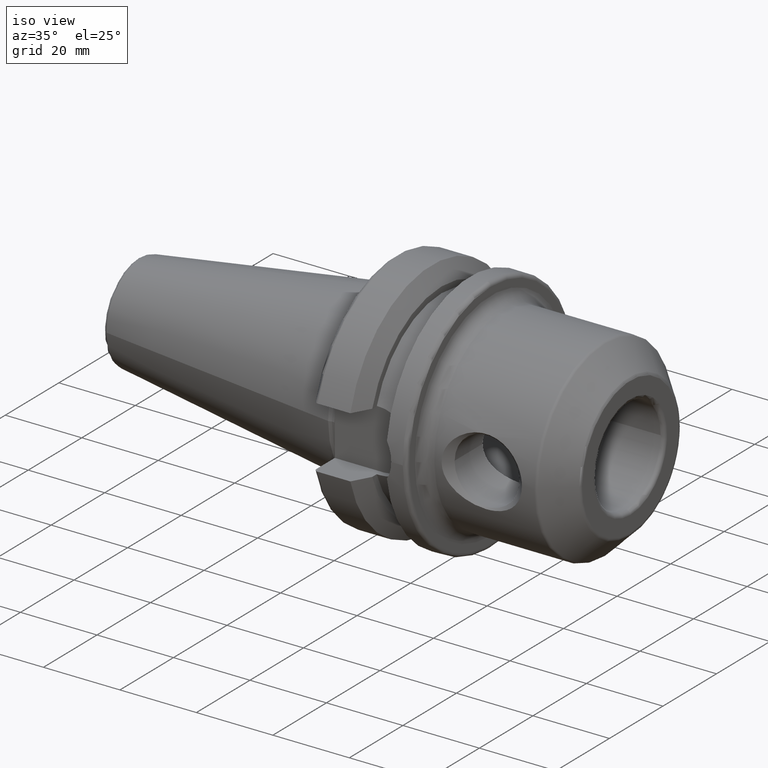
[diagram: clean part render]
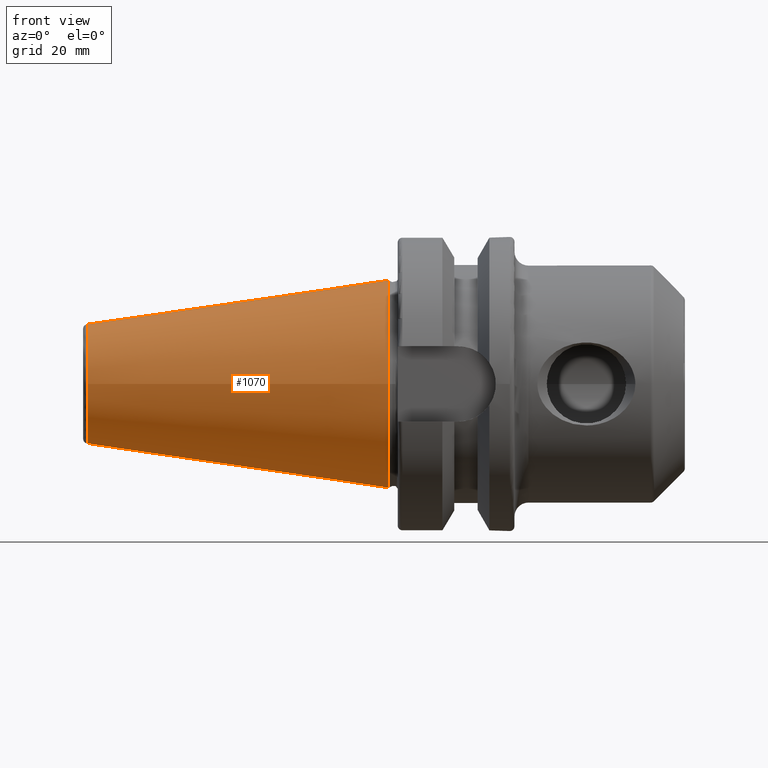
[diagram: tour spotlight — one face highlighted and labeled with its STEP entity id]
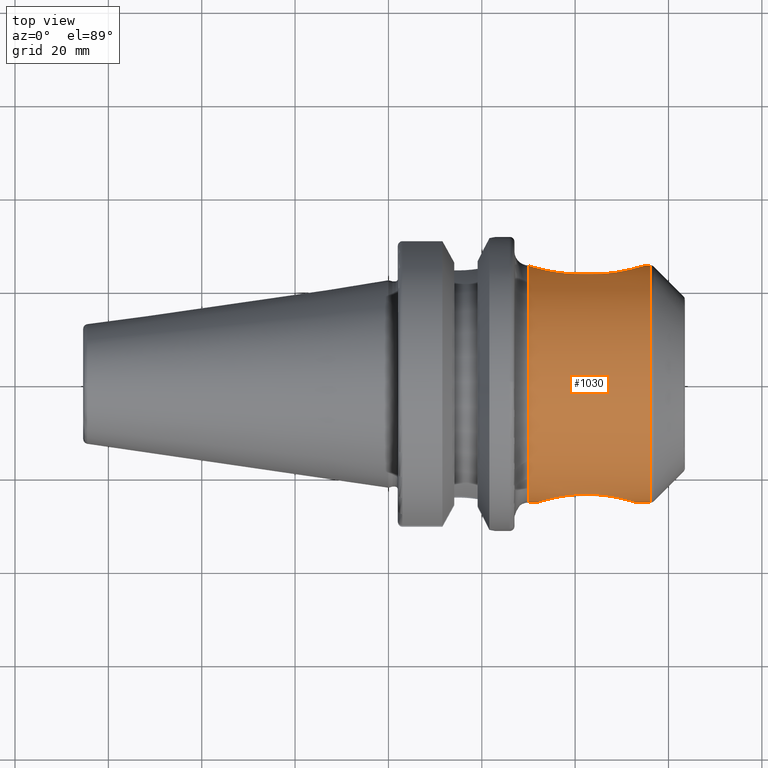
[diagram: tour spotlight — one face highlighted and labeled with its STEP entity id]
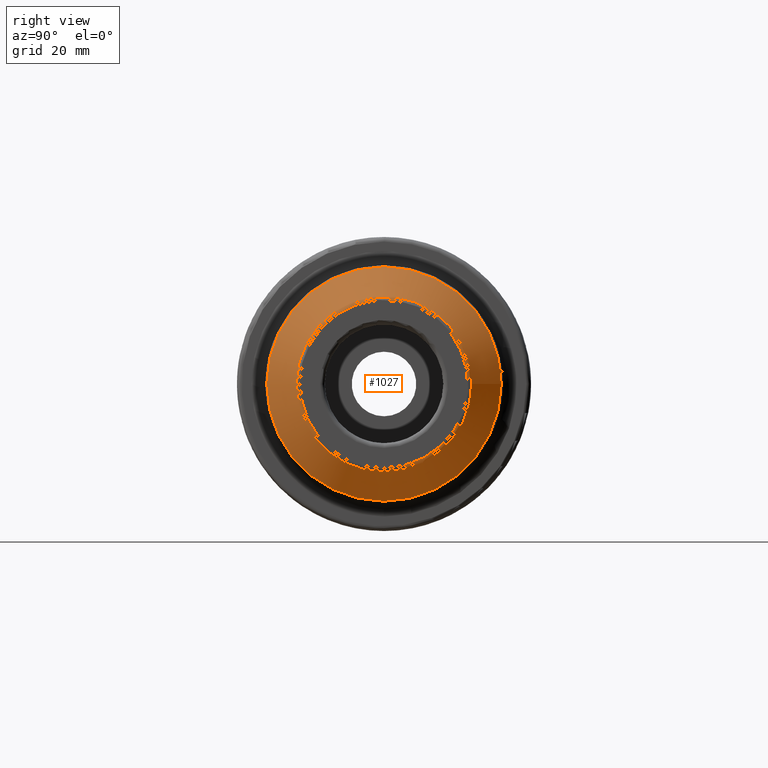
[diagram: tour spotlight — one face highlighted and labeled with its STEP entity id]
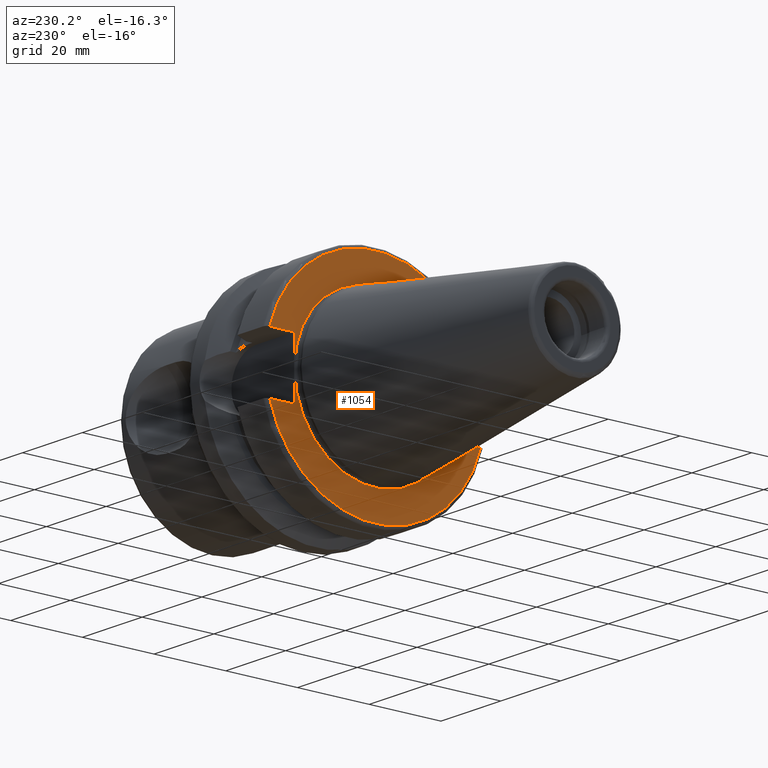
[diagram: tour spotlight — one face highlighted and labeled with its STEP entity id]
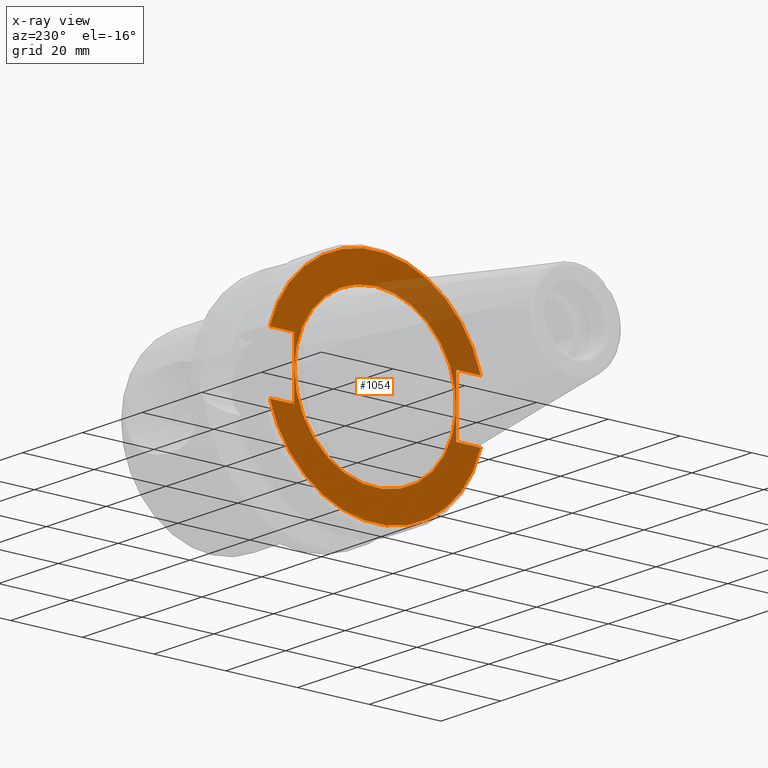
[diagram: x-ray of the same camera — body ghosted, this tour face saturated]
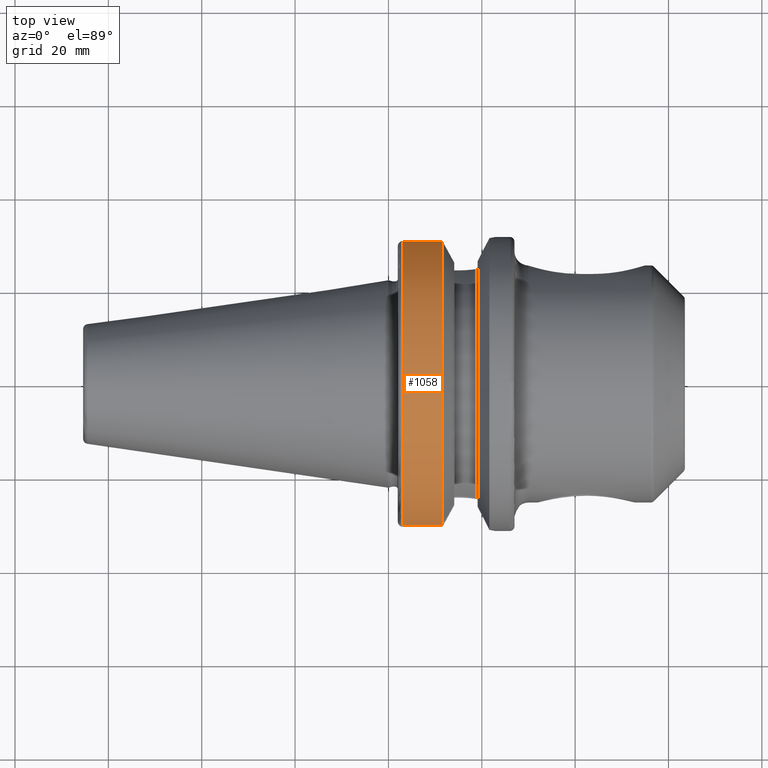
[diagram: tour spotlight — one face highlighted and labeled with its STEP entity id]
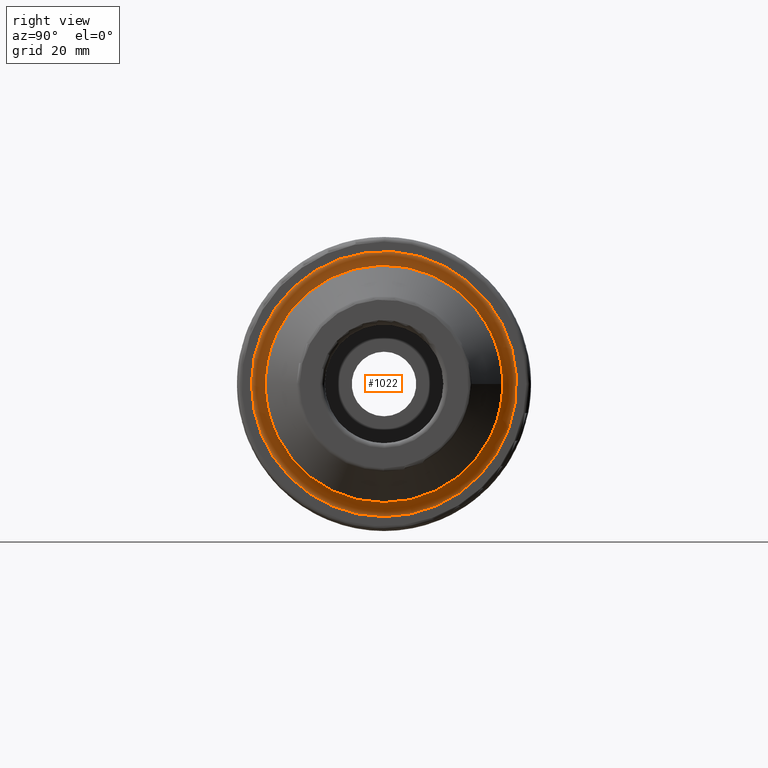
[diagram: tour spotlight — one face highlighted and labeled with its STEP entity id]
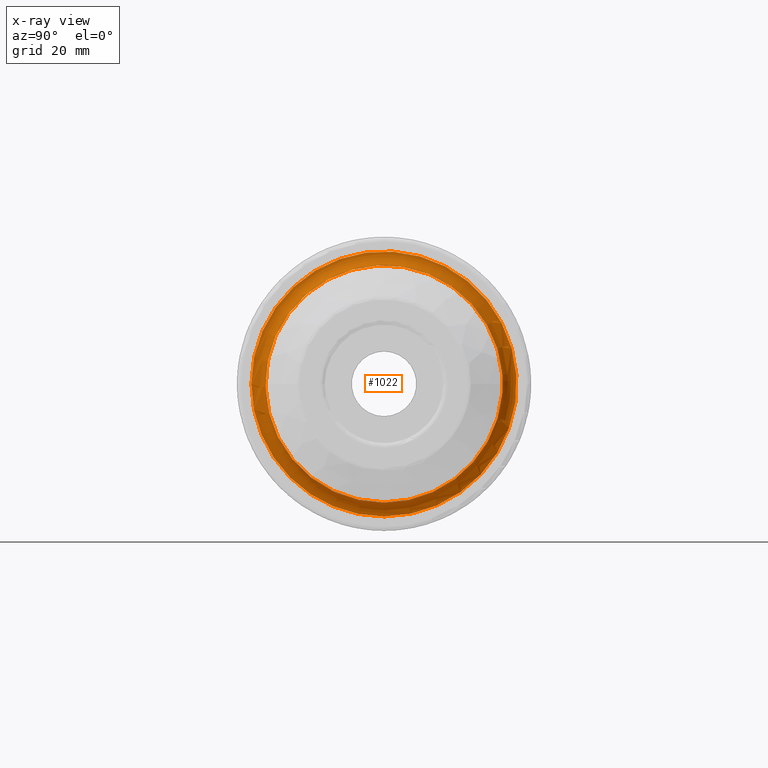
[diagram: x-ray of the same camera — body ghosted, this tour face saturated]
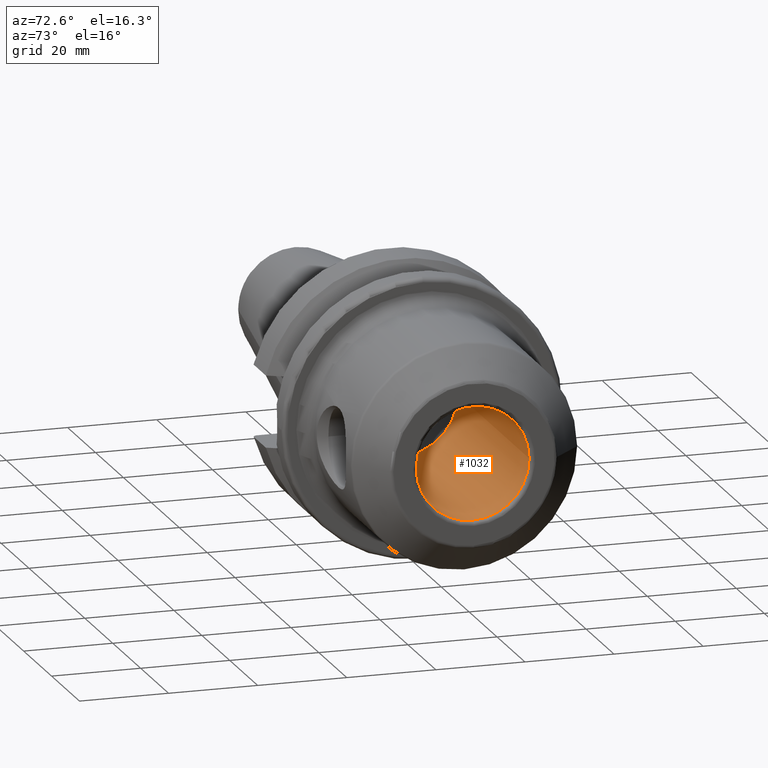
[diagram: tour spotlight — one face highlighted and labeled with its STEP entity id]
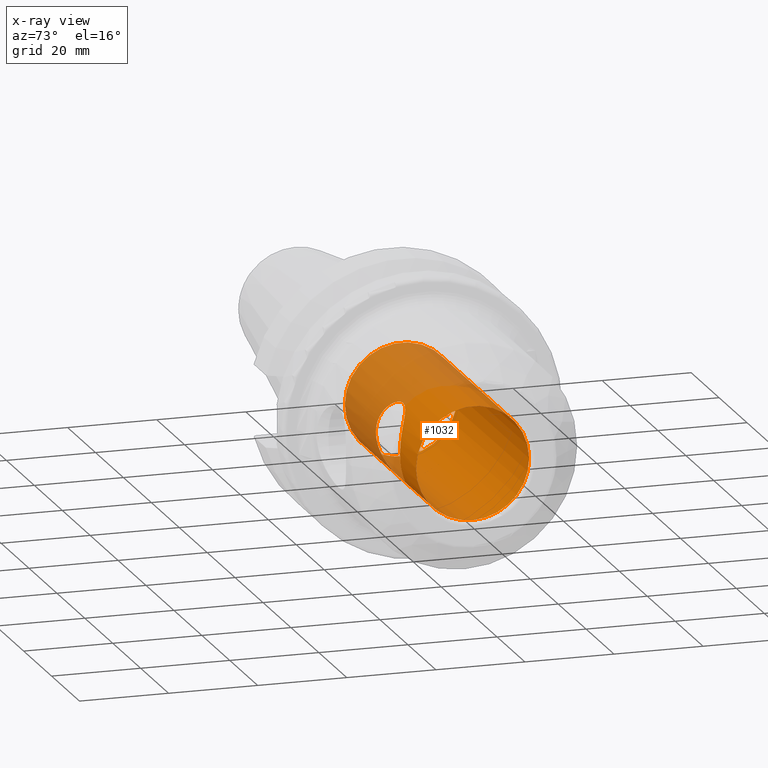
[diagram: x-ray of the same camera — body ghosted, this tour face saturated]
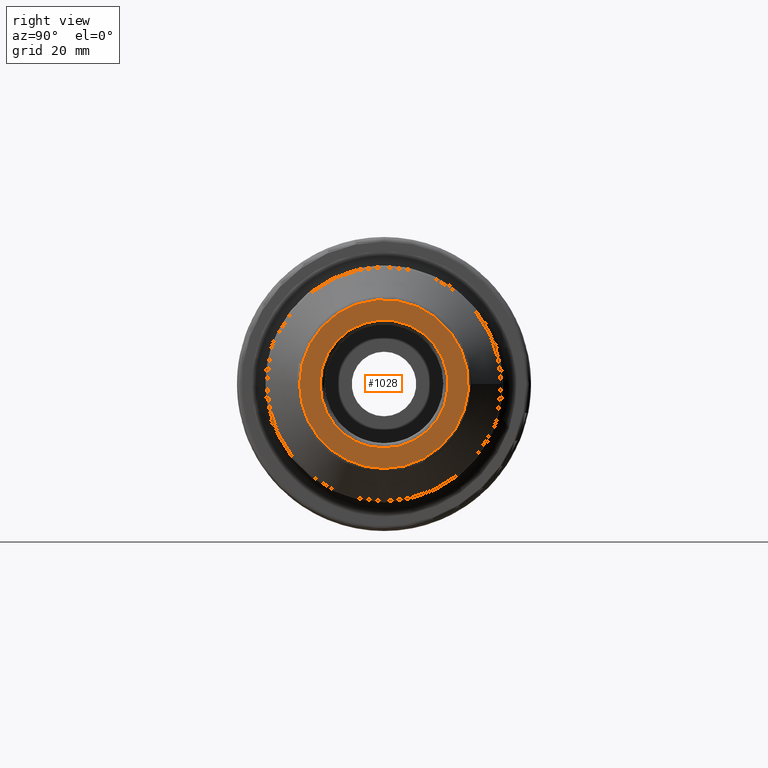
[diagram: tour spotlight — one face highlighted and labeled with its STEP entity id]
A machine part: a face-by-face anatomy tour. The part has 55 B-rep faces; the first image is the clean iso view, then the 8 largest visible faces are spotlighted one at a time (largest first), each with its STEP entity span.

Face 1 — front view, entity #1070. In plain terms, the highlighted conical surface has half-angle 8.297 deg.
Definition (entity closure, byte-faithful):
#26=CONICAL_SURFACE('',#1227,17.5186442890469,0.144812498238939);
#109=LINE('',#2118,#155);
#155=VECTOR('',#1556,17.5186442890469);
#225=FACE_OUTER_BOUND('',#290,.T.);
#290=EDGE_LOOP('',(#990,#991,#992,#993,#994,#995,#996));
#372=CIRCLE('',#1223,12.8122885780937);
#373=CIRCLE('',#1224,12.8122885780937);
#374=CIRCLE('',#1225,12.8122885780937);
#376=CIRCLE('',#1228,22.225);
#377=CIRCLE('',#1229,22.225);
#515=VERTEX_POINT('',#2106);
#516=VERTEX_POINT('',#2107);
#517=VERTEX_POINT('',#2109);
#518=VERTEX_POINT('',#2114);
#519=VERTEX_POINT('',#2115);
#674=EDGE_CURVE('',#515,#516,#372,.T.);
#675=EDGE_CURVE('',#517,#515,#373,.T.);
#676=EDGE_CURVE('',#516,#517,#374,.T.);
#678=EDGE_CURVE('',#518,#519,#376,.T.);
#679=EDGE_CURVE('',#519,#518,#377,.T.);
#680=EDGE_CURVE('',#519,#517,#109,.T.);
#990=ORIENTED_EDGE('',*,*,#678,.F.);
#991=ORIENTED_EDGE('',*,*,#679,.F.);
#992=ORIENTED_EDGE('',*,*,#680,.T.);
#993=ORIENTED_EDGE('',*,*,#675,.T.);
#994=ORIENTED_EDGE('',*,*,#674,.T.);
#995=ORIENTED_EDGE('',*,*,#676,.T.);
#996=ORIENTED_EDGE('',*,*,#680,.F.);
#1070=ADVANCED_FACE('',(#225),#26,.T.);
#1223=AXIS2_PLACEMENT_3D('',#2108,#1542,#1543);
#1224=AXIS2_PLACEMENT_3D('',#2110,#1544,#1545);
#1225=AXIS2_PLACEMENT_3D('',#2111,#1546,#1547);
#1227=AXIS2_PLACEMENT_3D('',#2113,#1550,#1551);
#1228=AXIS2_PLACEMENT_3D('',#2116,#1552,#1553);
#1229=AXIS2_PLACEMENT_3D('',#2117,#1554,#1555);
#1542=DIRECTION('center_axis',(1.,0.,0.));
#1543=DIRECTION('ref_axis',(0.,0.,-1.));
#1544=DIRECTION('center_axis',(1.,0.,0.));
#1545=DIRECTION('ref_axis',(0.,0.,-1.));
#1546=DIRECTION('center_axis',(1.,0.,0.));
#1547=DIRECTION('ref_axis',(0.,0.,-1.));
#1550=DIRECTION('center_axis',(1.,0.,0.));
#1551=DIRECTION('ref_axis',(0.,1.,0.));
#1552=DIRECTION('center_axis',(1.,0.,0.));
#1553=DIRECTION('ref_axis',(0.,0.,-1.));
#1554=DIRECTION('center_axis',(1.,0.,0.));
#1555=DIRECTION('ref_axis',(0.,0.,-1.));
#1556=DIRECTION('',(-0.989532981063282,0.144306893071729,1.76724974695192E-17));
#2106=CARTESIAN_POINT('',(-64.5443068930717,12.8122885780937,0.));
#2107=CARTESIAN_POINT('',(-64.5443068930717,-1.56905281969147E-15,12.8122885780937));
#2108=CARTESIAN_POINT('Origin',(-64.5443068930717,0.,0.));
#2109=CARTESIAN_POINT('',(-64.5443068930717,-12.8122885780937,-1.56905281969147E-15));
#2110=CARTESIAN_POINT('Origin',(-64.5443068930717,0.,0.));
#2111=CARTESIAN_POINT('Origin',(-64.5443068930717,0.,0.));
#2113=CARTESIAN_POINT('Origin',(-32.2721534465359,0.,0.));
#2114=CARTESIAN_POINT('',(1.11022302462516E-15,22.225,0.));
#2115=CARTESIAN_POINT('',(4.44089209850063E-15,-22.225,-2.72177751110499E-15));
#2116=CARTESIAN_POINT('Origin',(1.11022302462516E-15,0.,0.));
#2117=CARTESIAN_POINT('Origin',(1.11022302462516E-15,0.,0.));
#2118=CARTESIAN_POINT('',(-32.2721534465359,-17.5186442890469,-2.14541516539823E-15));

Face 2 — top view, entity #1030. In plain terms, the highlighted cylindrical surface (bore or boss wall) has radius 25.4 mm, axis along (-1, 0, 0).
Definition (entity closure, byte-faithful):
#30=FACE_BOUND('',#243,.T.);
#66=LINE('',#1645,#112);
#67=LINE('',#1646,#113);
#71=LINE('',#1779,#117);
#112=VECTOR('',#1251,10.);
#113=VECTOR('',#1252,10.);
#117=VECTOR('',#1322,25.4);
#160=CYLINDRICAL_SURFACE('',#1131,25.4);
#185=FACE_OUTER_BOUND('',#242,.T.);
#242=EDGE_LOOP('',(#750,#751,#752,#753,#754,#755,#756,#757,#758,#759,#760,
#761,#762));
#243=EDGE_LOOP('',(#763,#764));
#296=CIRCLE('',#1100,25.4);
#300=CIRCLE('',#1104,25.4);
#316=CIRCLE('',#1127,25.4);
#318=CIRCLE('',#1129,25.4);
#319=CIRCLE('',#1130,25.4);
#384=B_SPLINE_CURVE_WITH_KNOTS('',3,(#1581,#1582,#1583,#1584,#1585,#1586,
#1587,#1588,#1589,#1590),.UNSPECIFIED.,.F.,.F.,(4,2,2,2,4),(1.15060310915859,
1.5568528014465,1.96310249373441,2.35815051563219,2.55455688360268),
 .UNSPECIFIED.);
#385=B_SPLINE_CURVE_WITH_KNOTS('',3,(#1594,#1595,#1596,#1597,#1598,#1599,
#1600,#1601,#1602,#1603),.UNSPECIFIED.,.F.,.F.,(4,2,2,2,4),(2.95184019145727,
3.14824655942776,3.54329458132555,3.94954427361346,4.35579396590136),
 .UNSPECIFIED.);
#387=B_SPLINE_CURVE_WITH_KNOTS('',3,(#1614,#1615,#1616,#1617,#1618,#1619,
#1620,#1621,#1622,#1623,#1624,#1625,#1626,#1627),.UNSPECIFIED.,.F.,.F.,
(4,2,2,2,2,2,4),(1.17832725890177,1.45944341152974,1.74055956415772,2.02167571678569,
2.30279186941367,2.54829350110822,2.79379513280278),.UNSPECIFIED.);
#388=B_SPLINE_CURVE_WITH_KNOTS('',3,(#1630,#1631,#1632,#1633,#1634,#1635,
#1636,#1637,#1638,#1639,#1640,#1641,#1642,#1643),.UNSPECIFIED.,.F.,.F.,
(4,2,2,2,2,2,4),(2.79379513280278,3.03929676449733,3.28479839619188,3.56591454881986,
3.84703070144784,4.12814685407581,4.40926300670379),.UNSPECIFIED.);
#391=B_SPLINE_CURVE_WITH_KNOTS('',3,(#1709,#1710,#1711,#1712,#1713,#1714,
#1715,#1716,#1717,#1718,#1719,#1720,#1721,#1722,#1723,#1724,#1725,#1726,
#1727,#1728,#1729,#1730,#1731,#1732,#1733,#1734),.UNSPECIFIED.,.F.,.F.,
(4,2,2,2,2,2,2,2,2,2,2,2,4),(0.,0.3610240901817,0.7220481803634,1.09870730632305,
1.4753664322827,1.85202555824235,2.228684684202,2.5897087743837,2.9507328645654,
3.3117569547471,3.67278104492881,4.04944017088846,4.42609929684811),
 .UNSPECIFIED.);
#392=B_SPLINE_CURVE_WITH_KNOTS('',3,(#1735,#1736,#1737,#1738,#1739,#1740,
#1741,#1742,#1743,#1744),.UNSPECIFIED.,.F.,.F.,(4,2,2,2,4),(4.42609929684811,
4.80275842280776,5.17941754876741,5.54044163894911,5.90146572913081),
 .UNSPECIFIED.);
#408=VERTEX_POINT('',#1579);
#409=VERTEX_POINT('',#1580);
#410=VERTEX_POINT('',#1591);
#411=VERTEX_POINT('',#1593);
#412=VERTEX_POINT('',#1612);
#413=VERTEX_POINT('',#1613);
#414=VERTEX_POINT('',#1628);
#415=VERTEX_POINT('',#1648);
#424=VERTEX_POINT('',#1706);
#425=VERTEX_POINT('',#1708);
#436=VERTEX_POINT('',#1771);
#437=VERTEX_POINT('',#1772);
#438=VERTEX_POINT('',#1775);
#525=EDGE_CURVE('',#408,#409,#384,.T.);
#527=EDGE_CURVE('',#411,#410,#385,.T.);
#529=EDGE_CURVE('',#412,#413,#387,.T.);
#531=EDGE_CURVE('',#413,#414,#388,.T.);
#532=EDGE_CURVE('',#414,#408,#66,.T.);
#533=EDGE_CURVE('',#410,#412,#67,.T.);
#534=EDGE_CURVE('',#411,#415,#296,.T.);
#538=EDGE_CURVE('',#415,#409,#300,.T.);
#547=EDGE_CURVE('',#425,#424,#391,.T.);
#548=EDGE_CURVE('',#424,#425,#392,.T.);
#561=EDGE_CURVE('',#436,#437,#316,.T.);
#563=EDGE_CURVE('',#437,#438,#318,.T.);
#564=EDGE_CURVE('',#438,#436,#319,.T.);
#565=EDGE_CURVE('',#413,#438,#71,.T.);
#750=ORIENTED_EDGE('',*,*,#525,.T.);
#751=ORIENTED_EDGE('',*,*,#538,.F.);
#752=ORIENTED_EDGE('',*,*,#534,.F.);
#753=ORIENTED_EDGE('',*,*,#527,.T.);
#754=ORIENTED_EDGE('',*,*,#533,.T.);
#755=ORIENTED_EDGE('',*,*,#529,.T.);
#756=ORIENTED_EDGE('',*,*,#565,.T.);
#757=ORIENTED_EDGE('',*,*,#563,.F.);
#758=ORIENTED_EDGE('',*,*,#561,.F.);
#759=ORIENTED_EDGE('',*,*,#564,.F.);
#760=ORIENTED_EDGE('',*,*,#565,.F.);
#761=ORIENTED_EDGE('',*,*,#531,.T.);
#762=ORIENTED_EDGE('',*,*,#532,.T.);
#763=ORIENTED_EDGE('',*,*,#547,.T.);
#764=ORIENTED_EDGE('',*,*,#548,.T.);
#1030=ADVANCED_FACE('',(#185,#30),#160,.T.);
#1100=AXIS2_PLACEMENT_3D('',#1649,#1255,#1256);
#1104=AXIS2_PLACEMENT_3D('',#1655,#1263,#1264);
#1127=AXIS2_PLACEMENT_3D('',#1773,#1312,#1313);
#1129=AXIS2_PLACEMENT_3D('',#1776,#1316,#1317);
#1130=AXIS2_PLACEMENT_3D('',#1777,#1318,#1319);
#1131=AXIS2_PLACEMENT_3D('',#1778,#1320,#1321);
#1251=DIRECTION('',(-1.,0.,0.));
#1252=DIRECTION('',(1.,0.,0.));
#1255=DIRECTION('center_axis',(-1.,0.,0.));
#1256=DIRECTION('ref_axis',(0.,1.,1.22464679914735E-16));
#1263=DIRECTION('center_axis',(-1.,0.,0.));
#1264=DIRECTION('ref_axis',(0.,1.,1.22464679914735E-16));
#1312=DIRECTION('center_axis',(1.,0.,0.));
#1313=DIRECTION('ref_axis',(0.,1.,6.12323399573677E-17));
#1316=DIRECTION('center_axis',(1.,0.,0.));
#1317=DIRECTION('ref_axis',(0.,1.,6.12323399573677E-17));
#1318=DIRECTION('center_axis',(1.,0.,0.));
#1319=DIRECTION('ref_axis',(0.,1.,6.12323399573677E-17));
#1320=DIRECTION('center_axis',(-1.,0.,0.));
#1321=DIRECTION('ref_axis',(0.,-1.,0.));
#1322=DIRECTION('',(1.,0.,0.));
#1579=CARTESIAN_POINT('',(40.9,23.4102893890675,9.85486431769167));
#1580=CARTESIAN_POINT('',(30.,25.3204180064309,2.00908734992076));
#1581=CARTESIAN_POINT('Ctrl Pts',(40.9,23.4102893890675,9.85486431769167));
#1582=CARTESIAN_POINT('Ctrl Pts',(39.5458343590403,23.4102893890675,9.85486431769167));
#1583=CARTESIAN_POINT('Ctrl Pts',(38.0919462507472,23.5075695234657,9.63361514678932));
#1584=CARTESIAN_POINT('Ctrl Pts',(35.383195251928,23.8701094877704,8.69656574453217));
#1585=CARTESIAN_POINT('Ctrl Pts',(34.1283920846057,24.1311088420766,7.97895023498345));
#1586=CARTESIAN_POINT('Ctrl Pts',(32.1366281051506,24.6294604700915,6.27052341409688));
#1587=CARTESIAN_POINT('Ctrl Pts',(31.2586171467016,24.8991613034987,5.17326247028897));
#1588=CARTESIAN_POINT('Ctrl Pts',(30.3749609893207,25.1898774356332,3.31940018628545));
#1589=CARTESIAN_POINT('Ctrl Pts',(30.1495297437512,25.2680104756628,2.66957659434583));
#1590=CARTESIAN_POINT('Ctrl Pts',(30.,25.3204180064309,2.00908734992075));
#1591=CARTESIAN_POINT('',(40.9,23.4102893890675,-9.85486431769167));
#1593=CARTESIAN_POINT('',(30.,25.3204180064309,-2.00908734992076));
#1594=CARTESIAN_POINT('Ctrl Pts',(30.,25.3204180064309,-2.00908734992076));
#1595=CARTESIAN_POINT('Ctrl Pts',(30.1495297437512,25.2680104756628,-2.66957659434583));
#1596=CARTESIAN_POINT('Ctrl Pts',(30.3749609893207,25.1898774356332,-3.31940018628545));
#1597=CARTESIAN_POINT('Ctrl Pts',(31.2586171467016,24.8991613034987,-5.17326247028897));
#1598=CARTESIAN_POINT('Ctrl Pts',(32.1366281051506,24.6294604700915,-6.27052341409688));
#1599=CARTESIAN_POINT('Ctrl Pts',(34.1283920846057,24.1311088420766,-7.97895023498345));
#1600=CARTESIAN_POINT('Ctrl Pts',(35.383195251928,23.8701094877704,-8.69656574453217));
#1601=CARTESIAN_POINT('Ctrl Pts',(38.0919462507472,23.5075695234657,-9.63361514678932));
#1602=CARTESIAN_POINT('Ctrl Pts',(39.5458343590403,23.4102893890675,-9.85486431769167));
#1603=CARTESIAN_POINT('Ctrl Pts',(40.9,23.4102893890675,-9.85486431769167));
#1612=CARTESIAN_POINT('',(43.9,23.4102893890675,-9.85486431769167));
#1613=CARTESIAN_POINT('',(55.0247471881387,25.4,-3.35941384993302E-15));
#1614=CARTESIAN_POINT('Ctrl Pts',(43.9,23.4102893890675,-9.85486431769167));
#1615=CARTESIAN_POINT('Ctrl Pts',(44.8370538420933,23.4102893890675,-9.85486431769167));
#1616=CARTESIAN_POINT('Ctrl Pts',(45.7977423518484,23.4539959498598,-9.75305848004407));
#1617=CARTESIAN_POINT('Ctrl Pts',(47.6769739944852,23.625444609717,-9.33008268165364));
#1618=CARTESIAN_POINT('Ctrl Pts',(48.5955579425953,23.7529559221369,-9.00900054831946));
#1619=CARTESIAN_POINT('Ctrl Pts',(50.3094927429142,24.0589584727008,-8.15668737560362));
#1620=CARTESIAN_POINT('Ctrl Pts',(51.1065653637113,24.2372990048406,-7.62459709597406));
#1621=CARTESIAN_POINT('Ctrl Pts',(52.5131016610926,24.5950310978576,-6.37695770130135));
#1622=CARTESIAN_POINT('Ctrl Pts',(53.1226602870351,24.7738996893597,-5.66136573563702));
#1623=CARTESIAN_POINT('Ctrl Pts',(54.0421142874685,25.0610732027248,-4.19387163172099));
#1624=CARTESIAN_POINT('Ctrl Pts',(54.4153385046958,25.1870089336745,-3.39025944228934));
#1625=CARTESIAN_POINT('Ctrl Pts',(54.9067925280826,25.3570595887689,-1.70259213601163));
#1626=CARTESIAN_POINT('Ctrl Pts',(55.0247471881387,25.4,-0.818338772315187));
#1627=CARTESIAN_POINT('Ctrl Pts',(55.0247471881387,25.4,-3.60822483003176E-15));
#1628=CARTESIAN_POINT('',(43.9,23.4102893890675,9.85486431769167));
#1630=CARTESIAN_POINT('Ctrl Pts',(55.0247471881387,25.4,-3.33066907387547E-15));
#1631=CARTESIAN_POINT('Ctrl Pts',(55.0247471881387,25.4,0.81833877231518));
#1632=CARTESIAN_POINT('Ctrl Pts',(54.9067925280826,25.3570595887689,1.70259213601162));
#1633=CARTESIAN_POINT('Ctrl Pts',(54.4153385046958,25.1870089336745,3.39025944228934));
#1634=CARTESIAN_POINT('Ctrl Pts',(54.0421142874685,25.0610732027248,4.19387163172098));
#1635=CARTESIAN_POINT('Ctrl Pts',(53.1226602870351,24.7738996893597,5.66136573563701));
#1636=CARTESIAN_POINT('Ctrl Pts',(52.5131016610926,24.5950310978577,6.37695770130135));
#1637=CARTESIAN_POINT('Ctrl Pts',(51.1065653637113,24.2372990048406,7.62459709597406));
#1638=CARTESIAN_POINT('Ctrl Pts',(50.3094927429142,24.0589584727008,8.15668737560362));
#1639=CARTESIAN_POINT('Ctrl Pts',(48.5955579425953,23.7529559221369,9.00900054831946));
#1640=CARTESIAN_POINT('Ctrl Pts',(47.6769739944852,23.625444609717,9.33008268165364));
#1641=CARTESIAN_POINT('Ctrl Pts',(45.7977423518484,23.4539959498598,9.75305848004407));
#1642=CARTESIAN_POINT('Ctrl Pts',(44.8370538420932,23.4102893890675,9.85486431769167));
#1643=CARTESIAN_POINT('Ctrl Pts',(43.9,23.4102893890675,9.85486431769167));
#1645=CARTESIAN_POINT('',(42.4,23.4102893890675,9.85486431769167));
#1646=CARTESIAN_POINT('',(42.4,23.4102893890675,-9.85486431769167));
#1648=CARTESIAN_POINT('',(30.,-3.11060286983428E-15,-25.4));
#1649=CARTESIAN_POINT('Origin',(30.,0.,0.));
#1655=CARTESIAN_POINT('Origin',(30.,0.,0.));
#1706=CARTESIAN_POINT('',(52.9,-25.4,1.28587913910472E-15));
#1708=CARTESIAN_POINT('',(42.4,-23.7925059277946,-8.89250592779455));
#1709=CARTESIAN_POINT('Ctrl Pts',(42.4,-23.7925059277946,-8.89250592779455));
#1710=CARTESIAN_POINT('Ctrl Pts',(41.196586366061,-23.7925059277946,-8.89250592779455));
#1711=CARTESIAN_POINT('Ctrl Pts',(39.9008548135324,-23.8656911476182,-8.70427240656399));
#1712=CARTESIAN_POINT('Ctrl Pts',(37.4607998542122,-24.1398142954509,-7.91232914597284));
#1713=CARTESIAN_POINT('Ctrl Pts',(36.3160094816915,-24.3372176404209,-7.30883874161161));
#1714=CARTESIAN_POINT('Ctrl Pts',(34.3895290313291,-24.7334738837625,-5.83301357455255));
#1715=CARTESIAN_POINT('Ctrl Pts',(33.4826770482316,-24.9620248182559,-4.83672333921457));
#1716=CARTESIAN_POINT('Ctrl Pts',(32.2366862365842,-25.2981978723389,-2.54907486354706));
#1717=CARTESIAN_POINT('Ctrl Pts',(31.9,-25.4,-1.2555304198655));
#1718=CARTESIAN_POINT('Ctrl Pts',(31.9,-25.4,1.2555304198655));
#1719=CARTESIAN_POINT('Ctrl Pts',(32.2366862365842,-25.2981978723389,2.54907486354706));
#1720=CARTESIAN_POINT('Ctrl Pts',(33.4826770482316,-24.9620248182559,4.83672333921457));
#1721=CARTESIAN_POINT('Ctrl Pts',(34.3895290313291,-24.7334738837625,5.83301357455255));
#1722=CARTESIAN_POINT('Ctrl Pts',(36.3160094816915,-24.3372176404209,7.30883874161161));
#1723=CARTESIAN_POINT('Ctrl Pts',(37.4607998542122,-24.1398142954509,7.91232914597284));
#1724=CARTESIAN_POINT('Ctrl Pts',(39.9008548135324,-23.8656911476182,8.70427240656399));
#1725=CARTESIAN_POINT('Ctrl Pts',(41.196586366061,-23.7925059277946,8.89250592779455));
#1726=CARTESIAN_POINT('Ctrl Pts',(43.603413633939,-23.7925059277946,8.89250592779455));
#1727=CARTESIAN_POINT('Ctrl Pts',(44.8991451864676,-23.8656911476182,8.70427240656399));
#1728=CARTESIAN_POINT('Ctrl Pts',(47.3392001457878,-24.1398142954509,7.91232914597283));
#1729=CARTESIAN_POINT('Ctrl Pts',(48.4839905183085,-24.3372176404209,7.30883874161161));
#1730=CARTESIAN_POINT('Ctrl Pts',(50.4104709686709,-24.7334738837625,5.83301357455255));
#1731=CARTESIAN_POINT('Ctrl Pts',(51.3173229517684,-24.9620248182559,4.83672333921457));
#1732=CARTESIAN_POINT('Ctrl Pts',(52.5633137634158,-25.2981978723389,2.54907486354706));
#1733=CARTESIAN_POINT('Ctrl Pts',(52.9,-25.4,1.25553041986551));
#1734=CARTESIAN_POINT('Ctrl Pts',(52.9,-25.4,3.60822483003176E-15));
#1735=CARTESIAN_POINT('Ctrl Pts',(52.9,-25.4,-8.32667268468867E-16));
#1736=CARTESIAN_POINT('Ctrl Pts',(52.9,-25.4,-1.2555304198655));
#1737=CARTESIAN_POINT('Ctrl Pts',(52.5633137634158,-25.2981978723389,-2.54907486354706));
#1738=CARTESIAN_POINT('Ctrl Pts',(51.3173229517684,-24.9620248182559,-4.83672333921457));
#1739=CARTESIAN_POINT('Ctrl Pts',(50.4104709686709,-24.7334738837625,-5.83301357455255));
#1740=CARTESIAN_POINT('Ctrl Pts',(48.4839905183085,-24.3372176404209,-7.30883874161161));
#1741=CARTESIAN_POINT('Ctrl Pts',(47.3392001457878,-24.1398142954509,-7.91232914597284));
#1742=CARTESIAN_POINT('Ctrl Pts',(44.8991451864676,-23.8656911476182,-8.70427240656399));
#1743=CARTESIAN_POINT('Ctrl Pts',(43.603413633939,-23.7925059277946,-8.89250592779455));
#1744=CARTESIAN_POINT('Ctrl Pts',(42.4,-23.7925059277946,-8.89250592779455));
#1771=CARTESIAN_POINT('',(56.1857864376269,-25.4,-4.66590430475142E-15));
#1772=CARTESIAN_POINT('',(56.1857864376269,-3.11060286983428E-15,-25.4));
#1773=CARTESIAN_POINT('Origin',(56.1857864376269,0.,0.));
#1775=CARTESIAN_POINT('',(56.1857864376269,25.4,-3.11060286983428E-15));
#1776=CARTESIAN_POINT('Origin',(56.1857864376269,0.,0.));
#1777=CARTESIAN_POINT('Origin',(56.1857864376269,0.,0.));
#1778=CARTESIAN_POINT('Origin',(41.8,0.,0.));
#1779=CARTESIAN_POINT('',(41.8,25.4,-3.11060286983428E-15));

Face 3 — right view, entity #1027. In plain terms, the highlighted conical surface has half-angle 45 deg.
Definition (entity closure, byte-faithful):
#20=CONICAL_SURFACE('',#1119,21.95,0.785398163397449);
#70=LINE('',#1764,#116);
#116=VECTOR('',#1303,21.95);
#182=FACE_OUTER_BOUND('',#238,.T.);
#238=EDGE_LOOP('',(#730,#731,#732,#733,#734,#735,#736,#737));
#305=CIRCLE('',#1113,18.7928932188135);
#309=CIRCLE('',#1117,18.7928932188135);
#310=CIRCLE('',#1118,18.7928932188135);
#311=CIRCLE('',#1120,25.1071067811865);
#312=CIRCLE('',#1121,25.1071067811865);
#313=CIRCLE('',#1122,25.1071067811865);
#426=VERTEX_POINT('',#1746);
#427=VERTEX_POINT('',#1747);
#430=VERTEX_POINT('',#1754);
#431=VERTEX_POINT('',#1758);
#432=VERTEX_POINT('',#1759);
#433=VERTEX_POINT('',#1761);
#549=EDGE_CURVE('',#426,#427,#305,.T.);
#553=EDGE_CURVE('',#427,#430,#309,.T.);
#554=EDGE_CURVE('',#430,#426,#310,.T.);
#555=EDGE_CURVE('',#431,#432,#311,.T.);
#556=EDGE_CURVE('',#433,#431,#312,.T.);
#557=EDGE_CURVE('',#432,#433,#313,.T.);
#558=EDGE_CURVE('',#432,#430,#70,.T.);
#730=ORIENTED_EDGE('',*,*,#555,.F.);
#731=ORIENTED_EDGE('',*,*,#556,.F.);
#732=ORIENTED_EDGE('',*,*,#557,.F.);
#733=ORIENTED_EDGE('',*,*,#558,.T.);
#734=ORIENTED_EDGE('',*,*,#553,.F.);
#735=ORIENTED_EDGE('',*,*,#549,.F.);
#736=ORIENTED_EDGE('',*,*,#554,.F.);
#737=ORIENTED_EDGE('',*,*,#558,.F.);
#1027=ADVANCED_FACE('',(#182),#20,.T.);
#1113=AXIS2_PLACEMENT_3D('',#1748,#1283,#1284);
#1117=AXIS2_PLACEMENT_3D('',#1755,#1291,#1292);
#1118=AXIS2_PLACEMENT_3D('',#1756,#1293,#1294);
#1119=AXIS2_PLACEMENT_3D('',#1757,#1295,#1296);
#1120=AXIS2_PLACEMENT_3D('',#1760,#1297,#1298);
#1121=AXIS2_PLACEMENT_3D('',#1762,#1299,#1300);
#1122=AXIS2_PLACEMENT_3D('',#1763,#1301,#1302);
#1283=DIRECTION('center_axis',(1.,0.,0.));
#1284=DIRECTION('ref_axis',(0.,1.,-3.06161699786838E-17));
#1291=DIRECTION('center_axis',(1.,0.,0.));
#1292=DIRECTION('ref_axis',(0.,1.,-3.06161699786838E-17));
#1293=DIRECTION('center_axis',(1.,0.,0.));
#1294=DIRECTION('ref_axis',(0.,1.,-3.06161699786838E-17));
#1295=DIRECTION('center_axis',(-1.,0.,0.));
#1296=DIRECTION('ref_axis',(0.,-1.,0.));
#1297=DIRECTION('center_axis',(-1.,0.,0.));
#1298=DIRECTION('ref_axis',(0.,1.,-3.06161699786838E-17));
#1299=DIRECTION('center_axis',(-1.,0.,0.));
#1300=DIRECTION('ref_axis',(0.,1.,-3.06161699786838E-17));
#1301=DIRECTION('center_axis',(-1.,0.,0.));
#1302=DIRECTION('ref_axis',(0.,1.,-3.06161699786838E-17));
#1303=DIRECTION('',(0.707106781186547,-0.707106781186548,8.65956056235494E-17));
#1746=CARTESIAN_POINT('',(63.2071067811866,-18.7928932188135,-3.45219847907068E-15));
#1747=CARTESIAN_POINT('',(63.2071067811866,-2.30146565271379E-15,-18.7928932188135));
#1748=CARTESIAN_POINT('Origin',(63.2071067811866,0.,-1.72609923953534E-15));
#1754=CARTESIAN_POINT('',(63.2071067811866,18.7928932188135,-2.30146565271379E-15));
#1755=CARTESIAN_POINT('Origin',(63.2071067811866,0.,-1.72609923953534E-15));
#1756=CARTESIAN_POINT('Origin',(63.2071067811866,0.,-1.72609923953534E-15));
#1757=CARTESIAN_POINT('Origin',(60.05,0.,0.));
#1758=CARTESIAN_POINT('',(56.8928932188135,-25.1071067811865,1.53736689777154E-15));
#1759=CARTESIAN_POINT('',(56.8928932188135,25.1071067811866,-3.07473379554309E-15));
#1760=CARTESIAN_POINT('Origin',(56.8928932188135,0.,-2.30605034665732E-15));
#1761=CARTESIAN_POINT('',(56.8928932188135,-3.07473379554309E-15,-25.1071067811866));
#1762=CARTESIAN_POINT('Origin',(56.8928932188135,0.,-2.30605034665732E-15));
#1763=CARTESIAN_POINT('Origin',(56.8928932188135,0.,-2.30605034665732E-15));
#1764=CARTESIAN_POINT('',(60.05,21.95,-2.68809972412844E-15));

Face 4 — auxiliary view, entity #1054. An x-ray twin of the same camera follows (body ghosted, this face saturated) — the face is partly hidden behind the body. In plain terms, the highlighted planar face has unit normal (-1, 0, 0).
Definition (entity closure, byte-faithful):
#35=FACE_BOUND('',#272,.T.);
#51=PLANE('',#1183);
#78=LINE('',#1841,#124);
#86=LINE('',#1901,#132);
#89=LINE('',#1921,#135);
#98=LINE('',#2004,#144);
#103=LINE('',#2044,#149);
#105=LINE('',#2047,#151);
#124=VECTOR('',#1373,10.);
#132=VECTOR('',#1387,10.);
#135=VECTOR('',#1392,10.);
#144=VECTOR('',#1443,10.);
#149=VECTOR('',#1454,10.);
#151=VECTOR('',#1458,10.);
#209=FACE_OUTER_BOUND('',#271,.T.);
#271=EDGE_LOOP('',(#903,#904,#905,#906,#907,#908,#909,#910));
#272=EDGE_LOOP('',(#911,#912));
#346=CIRCLE('',#1177,30.5);
#348=CIRCLE('',#1184,30.5);
#349=CIRCLE('',#1185,22.5);
#350=CIRCLE('',#1186,22.5);
#457=VERTEX_POINT('',#1829);
#458=VERTEX_POINT('',#1840);
#470=VERTEX_POINT('',#1898);
#471=VERTEX_POINT('',#1900);
#487=VERTEX_POINT('',#1983);
#491=VERTEX_POINT('',#2001);
#492=VERTEX_POINT('',#2003);
#499=VERTEX_POINT('',#2043);
#500=VERTEX_POINT('',#2050);
#501=VERTEX_POINT('',#2051);
#588=EDGE_CURVE('',#458,#457,#78,.T.);
#603=EDGE_CURVE('',#471,#470,#86,.T.);
#608=EDGE_CURVE('',#470,#458,#89,.T.);
#629=EDGE_CURVE('',#471,#487,#346,.T.);
#634=EDGE_CURVE('',#492,#491,#98,.T.);
#644=EDGE_CURVE('',#499,#487,#103,.T.);
#646=EDGE_CURVE('',#491,#499,#105,.T.);
#647=EDGE_CURVE('',#492,#457,#348,.T.);
#648=EDGE_CURVE('',#500,#501,#349,.T.);
#649=EDGE_CURVE('',#501,#500,#350,.T.);
#903=ORIENTED_EDGE('',*,*,#588,.T.);
#904=ORIENTED_EDGE('',*,*,#647,.F.);
#905=ORIENTED_EDGE('',*,*,#634,.T.);
#906=ORIENTED_EDGE('',*,*,#646,.T.);
#907=ORIENTED_EDGE('',*,*,#644,.T.);
#908=ORIENTED_EDGE('',*,*,#629,.F.);
#909=ORIENTED_EDGE('',*,*,#603,.T.);
#910=ORIENTED_EDGE('',*,*,#608,.T.);
#911=ORIENTED_EDGE('',*,*,#648,.T.);
#912=ORIENTED_EDGE('',*,*,#649,.T.);
#1054=ADVANCED_FACE('',(#209,#35),#51,.T.);
#1177=AXIS2_PLACEMENT_3D('',#1984,#1436,#1437);
#1183=AXIS2_PLACEMENT_3D('',#2048,#1459,#1460);
#1184=AXIS2_PLACEMENT_3D('',#2049,#1461,#1462);
#1185=AXIS2_PLACEMENT_3D('',#2052,#1463,#1464);
#1186=AXIS2_PLACEMENT_3D('',#2053,#1465,#1466);
#1373=DIRECTION('',(0.,-1.,0.));
#1387=DIRECTION('',(0.,1.,0.));
#1392=DIRECTION('',(0.,0.,1.));
#1436=DIRECTION('center_axis',(1.,0.,0.));
#1437=DIRECTION('ref_axis',(0.,0.,-1.));
#1443=DIRECTION('',(0.,-1.,0.));
#1454=DIRECTION('',(0.,1.,0.));
#1458=DIRECTION('',(0.,0.,-1.));
#1459=DIRECTION('center_axis',(-1.,0.,0.));
#1460=DIRECTION('ref_axis',(0.,0.,1.));
#1461=DIRECTION('center_axis',(1.,0.,0.));
#1462=DIRECTION('ref_axis',(0.,0.,-1.));
#1463=DIRECTION('center_axis',(1.,0.,0.));
#1464=DIRECTION('ref_axis',(0.,0.,-1.));
#1465=DIRECTION('center_axis',(1.,0.,0.));
#1466=DIRECTION('ref_axis',(0.,0.,-1.));
#1829=CARTESIAN_POINT('',(1.99999999999999,-29.4184890842477,8.05));
#1840=CARTESIAN_POINT('',(1.99999999999999,-22.6,8.05));
#1841=CARTESIAN_POINT('',(1.99999999999999,3.95,8.05));
#1898=CARTESIAN_POINT('',(1.99999999999999,-22.6,-8.05));
#1900=CARTESIAN_POINT('',(1.99999999999999,-29.4184890842477,-8.05));
#1901=CARTESIAN_POINT('',(1.99999999999999,3.95,-8.05));
#1921=CARTESIAN_POINT('',(1.99999999999999,-22.6,0.));
#1983=CARTESIAN_POINT('',(1.99999999999999,29.4184890842477,-8.05));
#1984=CARTESIAN_POINT('Origin',(1.99999999999999,0.,0.));
#2001=CARTESIAN_POINT('',(1.99999999999999,22.6,8.05));
#2003=CARTESIAN_POINT('',(1.99999999999999,29.4184890842477,8.05));
#2004=CARTESIAN_POINT('',(1.99999999999999,26.55,8.05));
#2043=CARTESIAN_POINT('',(1.99999999999999,22.6,-8.05));
#2044=CARTESIAN_POINT('',(1.99999999999999,26.55,-8.05));
#2047=CARTESIAN_POINT('',(1.99999999999999,22.6,0.));
#2048=CARTESIAN_POINT('Origin',(1.99999999999999,30.5,0.));
#2049=CARTESIAN_POINT('Origin',(1.99999999999999,0.,0.));
#2050=CARTESIAN_POINT('',(2.,22.5,0.));
#2051=CARTESIAN_POINT('',(2.,-2.75545529808154E-15,22.5));
#2052=CARTESIAN_POINT('Origin',(2.,0.,0.));
#2053=CARTESIAN_POINT('Origin',(2.,0.,0.));

Face 5 — top view, entity #1058. In plain terms, the highlighted cylindrical surface (partial cylindrical patch) has radius 31.5 mm, axis along (1, 0, 0).
Definition (entity closure, byte-faithful):
#77=LINE('',#1828,#123);
#99=LINE('',#2017,#145);
#123=VECTOR('',#1372,10.);
#145=VECTOR('',#1444,10.);
#170=CYLINDRICAL_SURFACE('',#1194,31.5);
#213=FACE_OUTER_BOUND('',#276,.T.);
#276=EDGE_LOOP('',(#927,#928,#929,#930));
#353=CIRCLE('',#1191,31.5);
#355=CIRCLE('',#1195,31.5000000000001);
#455=VERTEX_POINT('',#1823);
#456=VERTEX_POINT('',#1827);
#493=VERTEX_POINT('',#2005);
#494=VERTEX_POINT('',#2016);
#586=EDGE_CURVE('',#456,#455,#77,.T.);
#636=EDGE_CURVE('',#494,#493,#99,.T.);
#652=EDGE_CURVE('',#493,#456,#353,.T.);
#654=EDGE_CURVE('',#494,#455,#355,.T.);
#927=ORIENTED_EDGE('',*,*,#586,.T.);
#928=ORIENTED_EDGE('',*,*,#654,.F.);
#929=ORIENTED_EDGE('',*,*,#636,.T.);
#930=ORIENTED_EDGE('',*,*,#652,.T.);
#1058=ADVANCED_FACE('',(#213),#170,.T.);
#1191=AXIS2_PLACEMENT_3D('',#2058,#1475,#1476);
#1194=AXIS2_PLACEMENT_3D('',#2061,#1481,#1482);
#1195=AXIS2_PLACEMENT_3D('',#2062,#1483,#1484);
#1372=DIRECTION('',(1.,0.,0.));
#1444=DIRECTION('',(-1.,0.,0.));
#1475=DIRECTION('center_axis',(1.,0.,0.));
#1476=DIRECTION('ref_axis',(0.,0.,-1.));
#1481=DIRECTION('center_axis',(1.,0.,0.));
#1482=DIRECTION('ref_axis',(0.,1.,0.));
#1483=DIRECTION('center_axis',(1.,0.,0.));
#1484=DIRECTION('ref_axis',(0.,0.,-1.));
#1823=CARTESIAN_POINT('',(11.5690363073382,-30.4540227227866,8.05));
#1827=CARTESIAN_POINT('',(2.99999999999999,-30.4540227227866,8.05));
#1828=CARTESIAN_POINT('',(7.28451815366907,-30.4540227227866,8.05));
#2005=CARTESIAN_POINT('',(2.99999999999999,30.4540227227866,8.05));
#2016=CARTESIAN_POINT('',(11.5690363073382,30.4540227227866,8.05));
#2017=CARTESIAN_POINT('',(7.28451815366907,30.4540227227866,8.05));
#2058=CARTESIAN_POINT('Origin',(2.99999999999999,0.,0.));
#2061=CARTESIAN_POINT('Origin',(7.28451815366907,0.,0.));
#2062=CARTESIAN_POINT('Origin',(11.5690363073382,0.,0.));

Face 6 — right view, entity #1022. An x-ray twin of the same camera follows (body ghosted, this face saturated) — the face is partly hidden behind the body. In plain terms, the highlighted toroidal blend (fillet) surface has major radius 28.4 mm and minor (blend) radius 3 mm.
Definition (entity closure, byte-faithful):
#56=TOROIDAL_SURFACE('',#1099,28.4,3.);
#177=FACE_OUTER_BOUND('',#232,.T.);
#232=EDGE_LOOP('',(#700,#701,#702,#703,#704,#705,#706));
#296=CIRCLE('',#1100,25.4);
#297=CIRCLE('',#1101,3.);
#298=CIRCLE('',#1102,28.4);
#299=CIRCLE('',#1103,28.4);
#300=CIRCLE('',#1104,25.4);
#386=B_SPLINE_CURVE_WITH_KNOTS('',3,(#1604,#1605,#1606,#1607,#1608,#1609,
#1610),.UNSPECIFIED.,.F.,.F.,(4,3,4),(-0.194381724257459,0.,0.194381726832908),
 .UNSPECIFIED.);
#409=VERTEX_POINT('',#1580);
#411=VERTEX_POINT('',#1593);
#415=VERTEX_POINT('',#1648);
#416=VERTEX_POINT('',#1650);
#417=VERTEX_POINT('',#1652);
#528=EDGE_CURVE('',#409,#411,#386,.T.);
#534=EDGE_CURVE('',#411,#415,#296,.T.);
#535=EDGE_CURVE('',#415,#416,#297,.T.);
#536=EDGE_CURVE('',#416,#417,#298,.T.);
#537=EDGE_CURVE('',#417,#416,#299,.T.);
#538=EDGE_CURVE('',#415,#409,#300,.T.);
#700=ORIENTED_EDGE('',*,*,#528,.T.);
#701=ORIENTED_EDGE('',*,*,#534,.T.);
#702=ORIENTED_EDGE('',*,*,#535,.T.);
#703=ORIENTED_EDGE('',*,*,#536,.T.);
#704=ORIENTED_EDGE('',*,*,#537,.T.);
#705=ORIENTED_EDGE('',*,*,#535,.F.);
#706=ORIENTED_EDGE('',*,*,#538,.T.);
#1022=ADVANCED_FACE('',(#177),#56,.F.);
#1099=AXIS2_PLACEMENT_3D('',#1647,#1253,#1254);
#1100=AXIS2_PLACEMENT_3D('',#1649,#1255,#1256);
#1101=AXIS2_PLACEMENT_3D('',#1651,#1257,#1258);
#1102=AXIS2_PLACEMENT_3D('',#1653,#1259,#1260);
#1103=AXIS2_PLACEMENT_3D('',#1654,#1261,#1262);
#1104=AXIS2_PLACEMENT_3D('',#1655,#1263,#1264);
#1253=DIRECTION('center_axis',(-1.,0.,0.));
#1254=DIRECTION('ref_axis',(0.,0.,1.));
#1255=DIRECTION('center_axis',(-1.,0.,0.));
#1256=DIRECTION('ref_axis',(0.,1.,1.22464679914735E-16));
#1257=DIRECTION('center_axis',(0.,-1.,1.22464679914735E-16));
#1258=DIRECTION('ref_axis',(0.,-1.22464679914735E-16,-1.));
#1259=DIRECTION('center_axis',(1.,0.,0.));
#1260=DIRECTION('ref_axis',(0.,1.,1.22464679914735E-16));
#1261=DIRECTION('center_axis',(1.,0.,0.));
#1262=DIRECTION('ref_axis',(0.,1.,1.22464679914735E-16));
#1263=DIRECTION('center_axis',(-1.,0.,0.));
#1264=DIRECTION('ref_axis',(0.,1.,1.22464679914735E-16));
#1580=CARTESIAN_POINT('',(30.,25.3204180064309,2.00908734992076));
#1593=CARTESIAN_POINT('',(30.,25.3204180064309,-2.00908734992076));
#1604=CARTESIAN_POINT('Ctrl Pts',(30.,25.3204180064309,2.00908734992076));
#1605=CARTESIAN_POINT('Ctrl Pts',(29.8467369033882,25.3741340113527,1.3321074772886));
#1606=CARTESIAN_POINT('Ctrl Pts',(29.7707631271497,25.4087710792843,0.647939080858197));
#1607=CARTESIAN_POINT('Ctrl Pts',(29.7707631271497,25.4087710792843,0.));
#1608=CARTESIAN_POINT('Ctrl Pts',(29.7707631271497,25.4087710792843,-0.647939089443027));
#1609=CARTESIAN_POINT('Ctrl Pts',(29.8467368989671,25.3741340129022,-1.33210745776023));
#1610=CARTESIAN_POINT('Ctrl Pts',(30.,25.3204180064309,-2.00908734992075));
#1647=CARTESIAN_POINT('Origin',(30.,0.,0.));
#1648=CARTESIAN_POINT('',(30.,-3.11060286983428E-15,-25.4));
#1649=CARTESIAN_POINT('Origin',(30.,0.,0.));
#1650=CARTESIAN_POINT('',(27.,-3.47799690957848E-15,-28.4));
#1651=CARTESIAN_POINT('Origin',(30.,-3.47799690957848E-15,-28.4));
#1652=CARTESIAN_POINT('',(27.,-28.4,-6.95599381915697E-15));
#1653=CARTESIAN_POINT('Origin',(27.,0.,0.));
#1654=CARTESIAN_POINT('Origin',(27.,0.,0.));
#1655=CARTESIAN_POINT('Origin',(30.,0.,0.));

Face 7 — auxiliary view, entity #1032. An x-ray twin of the same camera follows (body ghosted, this face saturated) — the face is partly hidden behind the body. In plain terms, the highlighted cylindrical surface (bore or boss wall) has radius 12.7 mm, axis along (-1, 0, 0).
Definition (entity closure, byte-faithful):
#31=FACE_BOUND('',#246,.T.);
#72=LINE('',#1790,#118);
#118=VECTOR('',#1335,12.7);
#161=CYLINDRICAL_SURFACE('',#1137,12.7);
#187=FACE_OUTER_BOUND('',#245,.T.);
#245=EDGE_LOOP('',(#772,#773,#774,#775,#776,#777,#778));
#246=EDGE_LOOP('',(#779,#780));
#321=CIRCLE('',#1134,12.7);
#322=CIRCLE('',#1135,12.7);
#323=CIRCLE('',#1136,12.7);
#324=CIRCLE('',#1138,12.7);
#325=CIRCLE('',#1139,12.7);
#389=B_SPLINE_CURVE_WITH_KNOTS('',3,(#1664,#1665,#1666,#1667,#1668,#1669,
#1670,#1671,#1672,#1673),.UNSPECIFIED.,.F.,.F.,(4,2,2,2,4),(0.,0.342831187342052,
0.685662374684104,1.02424067190905,1.36281896913399),.UNSPECIFIED.);
#390=B_SPLINE_CURVE_WITH_KNOTS('',3,(#1674,#1675,#1676,#1677,#1678,#1679,
#1680,#1681,#1682,#1683,#1684,#1685,#1686,#1687,#1688,#1689,#1690,#1691,
#1692,#1693,#1694,#1695,#1696,#1697,#1698,#1699),.UNSPECIFIED.,.F.,.F.,
(4,2,2,2,2,2,2,2,2,2,2,2,4),(1.36281896913399,1.70139726635893,2.03997556358388,
2.38280675092593,2.72563793826798,3.06846912561003,3.41130031295208,3.74987861017703,
4.08845690740197,4.42703520462691,4.76561350185186,5.10844468919391,5.45127587653596),
 .UNSPECIFIED.);
#420=VERTEX_POINT('',#1661);
#421=VERTEX_POINT('',#1663);
#439=VERTEX_POINT('',#1781);
#440=VERTEX_POINT('',#1783);
#441=VERTEX_POINT('',#1785);
#442=VERTEX_POINT('',#1789);
#443=VERTEX_POINT('',#1791);
#542=EDGE_CURVE('',#421,#420,#389,.T.);
#543=EDGE_CURVE('',#420,#421,#390,.T.);
#567=EDGE_CURVE('',#439,#440,#321,.T.);
#568=EDGE_CURVE('',#440,#441,#322,.T.);
#569=EDGE_CURVE('',#441,#439,#323,.T.);
#570=EDGE_CURVE('',#441,#442,#72,.T.);
#571=EDGE_CURVE('',#442,#443,#324,.T.);
#572=EDGE_CURVE('',#443,#442,#325,.T.);
#772=ORIENTED_EDGE('',*,*,#568,.F.);
#773=ORIENTED_EDGE('',*,*,#567,.F.);
#774=ORIENTED_EDGE('',*,*,#569,.F.);
#775=ORIENTED_EDGE('',*,*,#570,.T.);
#776=ORIENTED_EDGE('',*,*,#571,.T.);
#777=ORIENTED_EDGE('',*,*,#572,.T.);
#778=ORIENTED_EDGE('',*,*,#570,.F.);
#779=ORIENTED_EDGE('',*,*,#542,.T.);
#780=ORIENTED_EDGE('',*,*,#543,.T.);
#1032=ADVANCED_FACE('',(#187,#31),#161,.F.);
#1134=AXIS2_PLACEMENT_3D('',#1784,#1327,#1328);
#1135=AXIS2_PLACEMENT_3D('',#1786,#1329,#1330);
#1136=AXIS2_PLACEMENT_3D('',#1787,#1331,#1332);
#1137=AXIS2_PLACEMENT_3D('',#1788,#1333,#1334);
#1138=AXIS2_PLACEMENT_3D('',#1792,#1336,#1337);
#1139=AXIS2_PLACEMENT_3D('',#1793,#1338,#1339);
#1327=DIRECTION('center_axis',(-1.,0.,0.));
#1328=DIRECTION('ref_axis',(0.,1.,1.22464679914735E-16));
#1329=DIRECTION('center_axis',(-1.,0.,0.));
#1330=DIRECTION('ref_axis',(0.,1.,1.22464679914735E-16));
#1331=DIRECTION('center_axis',(-1.,0.,0.));
#1332=DIRECTION('ref_axis',(0.,1.,1.22464679914735E-16));
#1333=DIRECTION('center_axis',(-1.,0.,0.));
#1334=DIRECTION('ref_axis',(0.,-1.,0.));
#1335=DIRECTION('',(-1.,0.,0.));
#1336=DIRECTION('center_axis',(-1.,0.,0.));
#1337=DIRECTION('ref_axis',(0.,0.,1.));
#1338=DIRECTION('center_axis',(-1.,0.,0.));
#1339=DIRECTION('ref_axis',(0.,0.,1.));
#1661=CARTESIAN_POINT('',(33.7386,-12.7,-1.08546930161932E-15));
#1663=CARTESIAN_POINT('',(42.4,-9.28817258883575,8.6614));
#1664=CARTESIAN_POINT('Ctrl Pts',(42.4,-9.28817258883575,8.6614));
#1665=CARTESIAN_POINT('Ctrl Pts',(41.2572293755265,-9.28817258883575,8.6614));
#1666=CARTESIAN_POINT('Ctrl Pts',(40.0868074201431,-9.52028980979604,8.42510703939285));
#1667=CARTESIAN_POINT('Ctrl Pts',(37.9751813519529,-10.2403122930747,7.53354592798));
#1668=CARTESIAN_POINT('Ctrl Pts',(37.0284889887479,-10.7111190531903,6.87755833788624));
#1669=CARTESIAN_POINT('Ctrl Pts',(35.5317830727377,-11.5350374541816,5.38085242187607));
#1670=CARTESIAN_POINT('Ctrl Pts',(34.8697130640066,-11.9523850753063,4.43227008771077));
#1671=CARTESIAN_POINT('Ctrl Pts',(33.9722325850977,-12.5372065673924,2.30715875855383));
#1672=CARTESIAN_POINT('Ctrl Pts',(33.7386,-12.7,1.12859432408314));
#1673=CARTESIAN_POINT('Ctrl Pts',(33.7386,-12.7,-8.32667268468867E-16));
#1674=CARTESIAN_POINT('Ctrl Pts',(33.7386,-12.7,-1.11022302462516E-15));
#1675=CARTESIAN_POINT('Ctrl Pts',(33.7386,-12.7,-1.12859432408315));
#1676=CARTESIAN_POINT('Ctrl Pts',(33.9722325850977,-12.5372065673924,-2.30715875855383));
#1677=CARTESIAN_POINT('Ctrl Pts',(34.8697130640066,-11.9523850753063,-4.43227008771077));
#1678=CARTESIAN_POINT('Ctrl Pts',(35.5317830727378,-11.5350374541816,-5.38085242187607));
#1679=CARTESIAN_POINT('Ctrl Pts',(37.0284889887479,-10.7111190531903,-6.87755833788624));
#1680=CARTESIAN_POINT('Ctrl Pts',(37.9751813519529,-10.2403122930747,-7.53354592798));
#1681=CARTESIAN_POINT('Ctrl Pts',(40.0868074201431,-9.52028980979604,-8.42510703939285));
#1682=CARTESIAN_POINT('Ctrl Pts',(41.2572293755265,-9.28817258883575,-8.6614));
#1683=CARTESIAN_POINT('Ctrl Pts',(43.5427706244735,-9.28817258883575,-8.6614));
#1684=CARTESIAN_POINT('Ctrl Pts',(44.7131925798569,-9.52028980979604,-8.42510703939285));
#1685=CARTESIAN_POINT('Ctrl Pts',(46.8248186480471,-10.2403122930747,-7.53354592798));
#1686=CARTESIAN_POINT('Ctrl Pts',(47.7715110112521,-10.7111190531903,-6.87755833788624));
#1687=CARTESIAN_POINT('Ctrl Pts',(49.2682169272623,-11.5350374541816,-5.38085242187608));
#1688=CARTESIAN_POINT('Ctrl Pts',(49.9302869359934,-11.9523850753063,-4.43227008771077));
#1689=CARTESIAN_POINT('Ctrl Pts',(50.8277674149023,-12.5372065673924,-2.30715875855383));
#1690=CARTESIAN_POINT('Ctrl Pts',(51.0614,-12.7,-1.12859432408315));
#1691=CARTESIAN_POINT('Ctrl Pts',(51.0614,-12.7,1.12859432408314));
#1692=CARTESIAN_POINT('Ctrl Pts',(50.8277674149023,-12.5372065673924,2.30715875855383));
#1693=CARTESIAN_POINT('Ctrl Pts',(49.9302869359934,-11.9523850753063,4.43227008771077));
#1694=CARTESIAN_POINT('Ctrl Pts',(49.2682169272623,-11.5350374541816,5.38085242187607));
#1695=CARTESIAN_POINT('Ctrl Pts',(47.7715110112521,-10.7111190531903,6.87755833788624));
#1696=CARTESIAN_POINT('Ctrl Pts',(46.8248186480471,-10.2403122930747,7.53354592798));
#1697=CARTESIAN_POINT('Ctrl Pts',(44.7131925798569,-9.52028980979604,8.42510703939285));
#1698=CARTESIAN_POINT('Ctrl Pts',(43.5427706244735,-9.28817258883575,8.6614));
#1699=CARTESIAN_POINT('Ctrl Pts',(42.4,-9.28817258883575,8.6614));
#1781=CARTESIAN_POINT('',(62.5,-1.55530143491714E-15,-12.7));
#1783=CARTESIAN_POINT('',(62.5,-12.7,0.));
#1784=CARTESIAN_POINT('Origin',(62.5,0.,0.));
#1785=CARTESIAN_POINT('',(62.5,12.7,-1.55530143491714E-15));
#1786=CARTESIAN_POINT('Origin',(62.5,0.,0.));
#1787=CARTESIAN_POINT('Origin',(62.5,0.,0.));
#1788=CARTESIAN_POINT('Origin',(37.5,0.,0.));
#1789=CARTESIAN_POINT('',(11.5,12.7,-1.55530143491714E-15));
#1790=CARTESIAN_POINT('',(37.5,12.7,-1.55530143491714E-15));
#1791=CARTESIAN_POINT('',(11.5,-12.7,0.));
#1792=CARTESIAN_POINT('Origin',(11.5,0.,0.));
#1793=CARTESIAN_POINT('Origin',(11.5,0.,0.));

Face 8 — right view, entity #1028. In plain terms, the highlighted planar face has unit normal (1, 0, 0).
Definition (entity closure, byte-faithful):
#29=FACE_BOUND('',#240,.T.);
#39=PLANE('',#1123);
#183=FACE_OUTER_BOUND('',#239,.T.);
#239=EDGE_LOOP('',(#738,#739));
#240=EDGE_LOOP('',(#740,#741));
#307=CIRCLE('',#1115,18.0857864376269);
#308=CIRCLE('',#1116,18.0857864376269);
#314=CIRCLE('',#1124,13.7);
#315=CIRCLE('',#1125,13.7);
#428=VERTEX_POINT('',#1749);
#429=VERTEX_POINT('',#1751);
#434=VERTEX_POINT('',#1766);
#435=VERTEX_POINT('',#1767);
#551=EDGE_CURVE('',#428,#429,#307,.T.);
#552=EDGE_CURVE('',#429,#428,#308,.T.);
#559=EDGE_CURVE('',#434,#435,#314,.T.);
#560=EDGE_CURVE('',#435,#434,#315,.T.);
#738=ORIENTED_EDGE('',*,*,#552,.F.);
#739=ORIENTED_EDGE('',*,*,#551,.F.);
#740=ORIENTED_EDGE('',*,*,#559,.F.);
#741=ORIENTED_EDGE('',*,*,#560,.F.);
#1028=ADVANCED_FACE('',(#183,#29),#39,.T.);
#1115=AXIS2_PLACEMENT_3D('',#1752,#1287,#1288);
#1116=AXIS2_PLACEMENT_3D('',#1753,#1289,#1290);
#1123=AXIS2_PLACEMENT_3D('',#1765,#1304,#1305);
#1124=AXIS2_PLACEMENT_3D('',#1768,#1306,#1307);
#1125=AXIS2_PLACEMENT_3D('',#1769,#1308,#1309);
#1287=DIRECTION('center_axis',(-1.,0.,0.));
#1288=DIRECTION('ref_axis',(0.,1.,6.12323399573677E-17));
#1289=DIRECTION('center_axis',(-1.,0.,0.));
#1290=DIRECTION('ref_axis',(0.,1.,6.12323399573677E-17));
#1304=DIRECTION('center_axis',(1.,0.,0.));
#1305=DIRECTION('ref_axis',(0.,0.,-1.));
#1306=DIRECTION('center_axis',(1.,0.,0.));
#1307=DIRECTION('ref_axis',(0.,1.,1.22464679914735E-16));
#1308=DIRECTION('center_axis',(1.,0.,0.));
#1309=DIRECTION('ref_axis',(0.,1.,1.22464679914735E-16));
#1749=CARTESIAN_POINT('',(63.5,-2.21487004709024E-15,-18.0857864376269));
#1751=CARTESIAN_POINT('',(63.5,-18.0857864376269,1.10743502354512E-15));
#1752=CARTESIAN_POINT('Origin',(63.5,0.,0.));
#1753=CARTESIAN_POINT('Origin',(63.5,0.,0.));
#1765=CARTESIAN_POINT('Origin',(63.5,-18.5,0.));
#1766=CARTESIAN_POINT('',(63.5,-13.7,-3.35553222966375E-15));
#1767=CARTESIAN_POINT('',(63.5,-1.67776611483187E-15,-13.7));
#1768=CARTESIAN_POINT('Origin',(63.5,0.,0.));
#1769=CARTESIAN_POINT('Origin',(63.5,0.,0.));